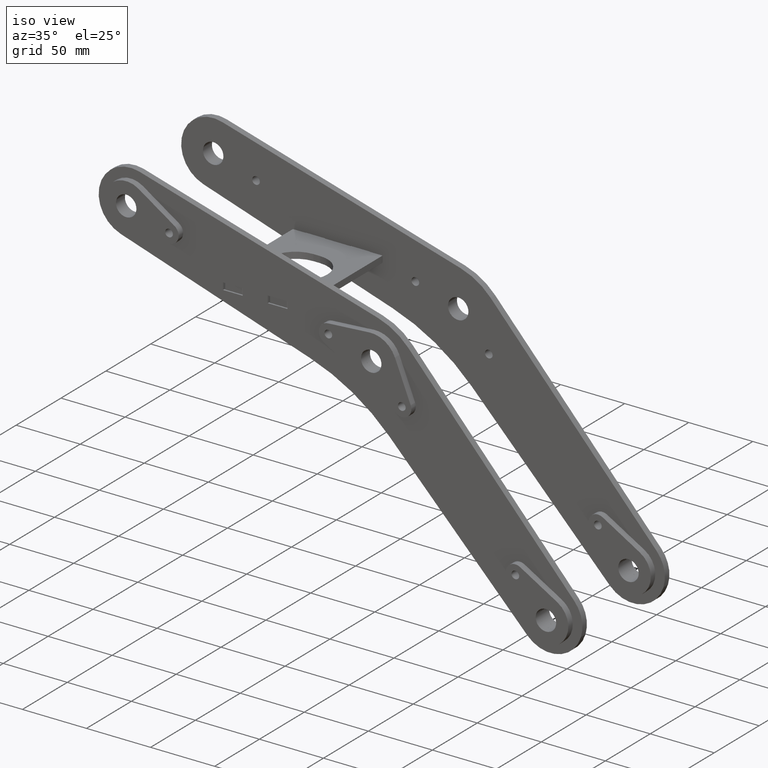
[diagram: clean part render]
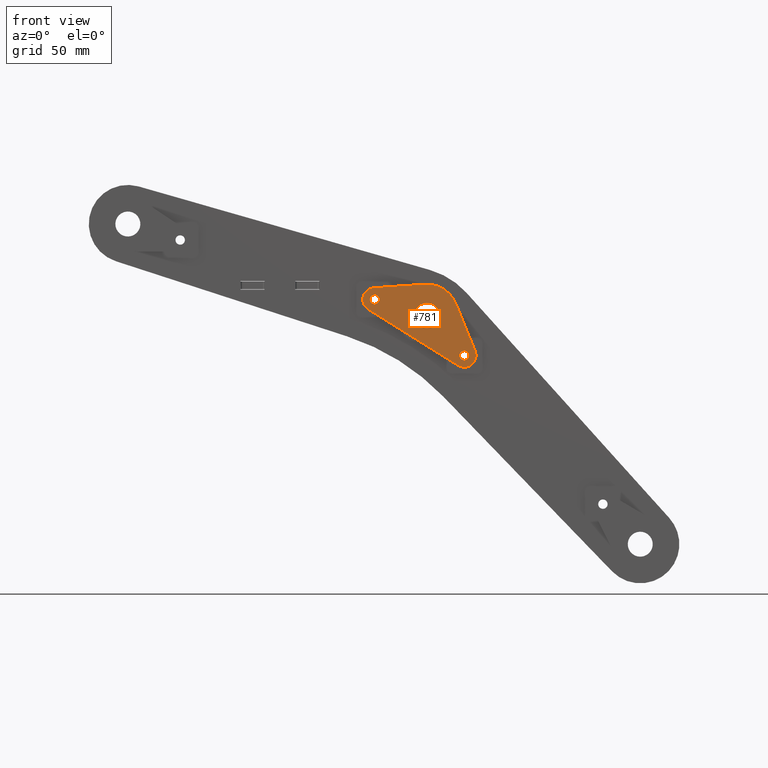
[diagram: tour spotlight — one face highlighted and labeled with its STEP entity id]
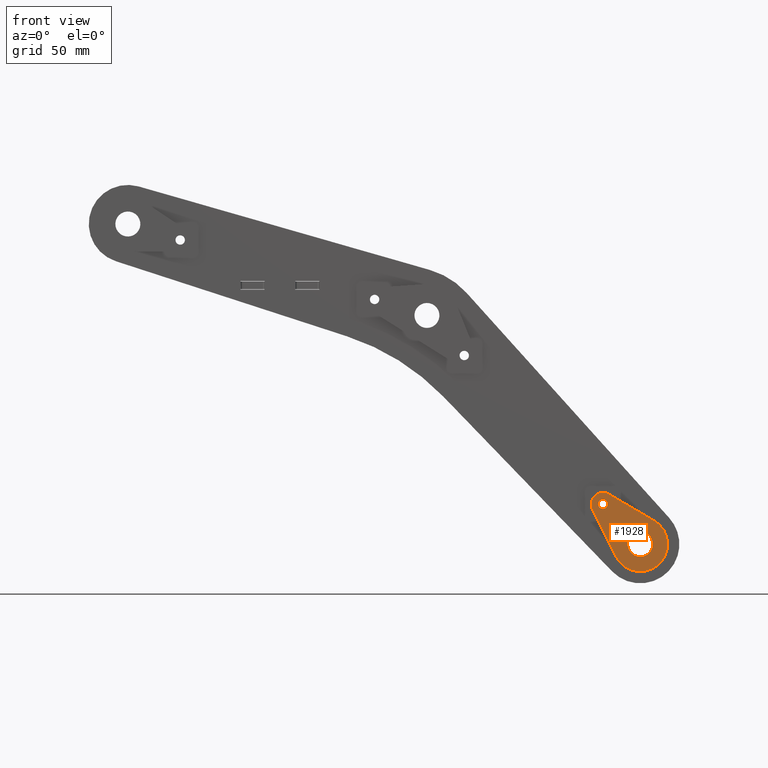
[diagram: tour spotlight — one face highlighted and labeled with its STEP entity id]
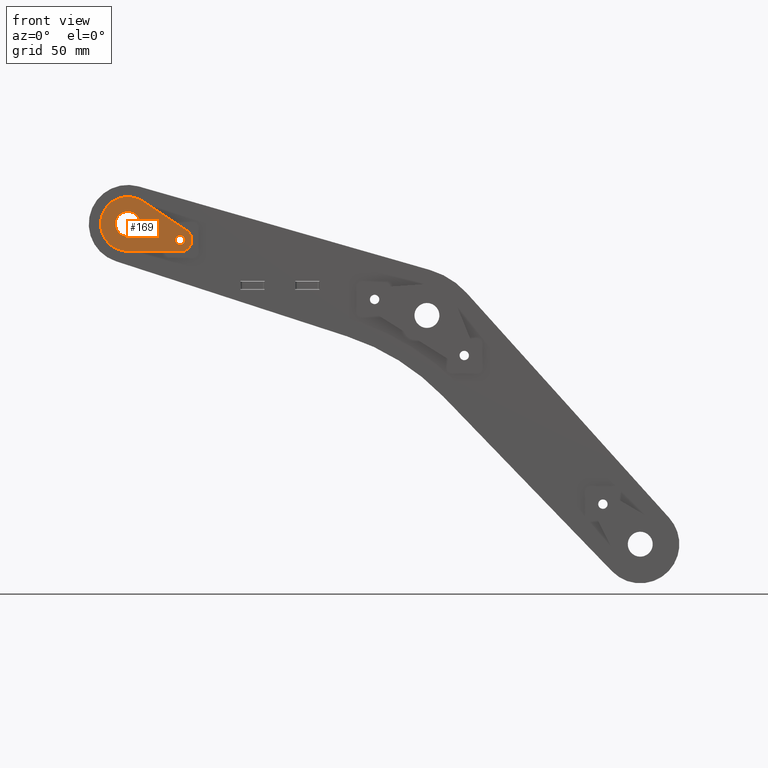
[diagram: tour spotlight — one face highlighted and labeled with its STEP entity id]
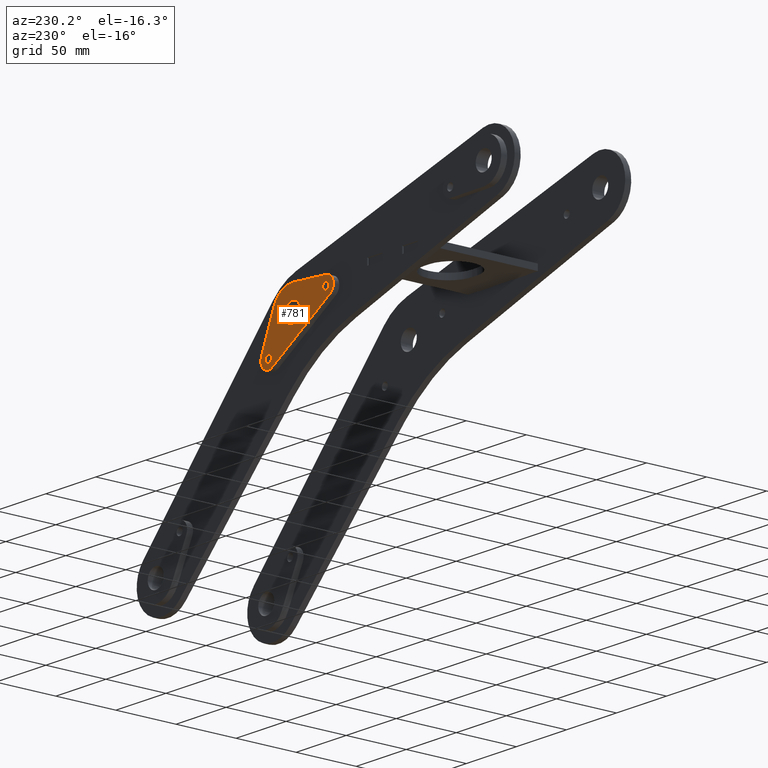
[diagram: tour spotlight — one face highlighted and labeled with its STEP entity id]
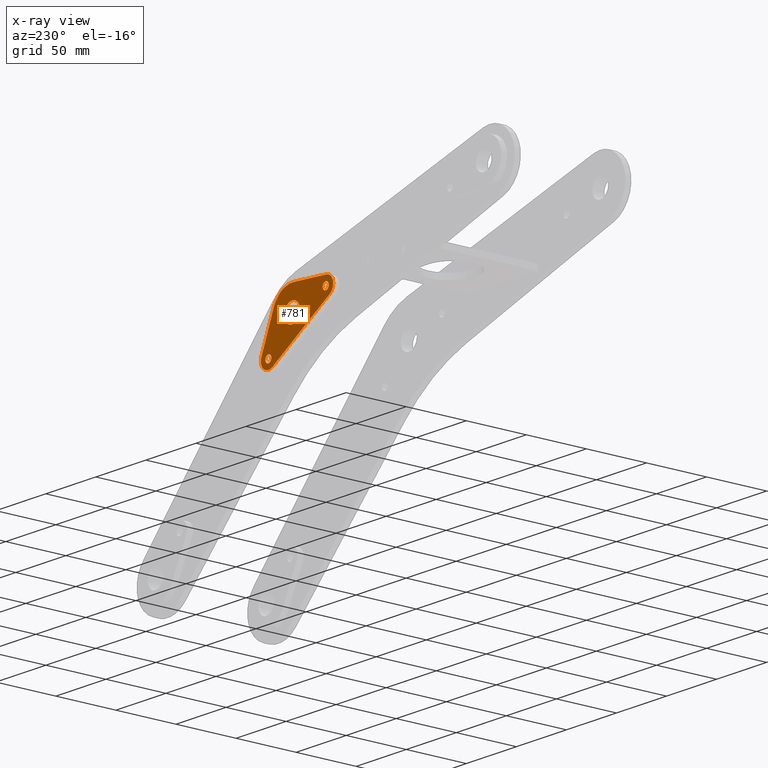
[diagram: x-ray of the same camera — body ghosted, this tour face saturated]
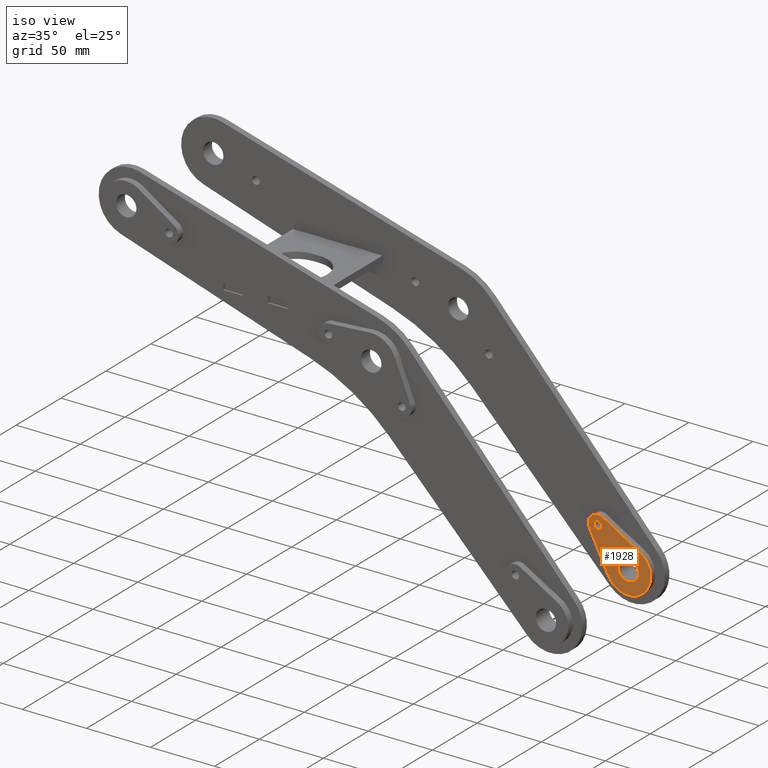
[diagram: tour spotlight — one face highlighted and labeled with its STEP entity id]
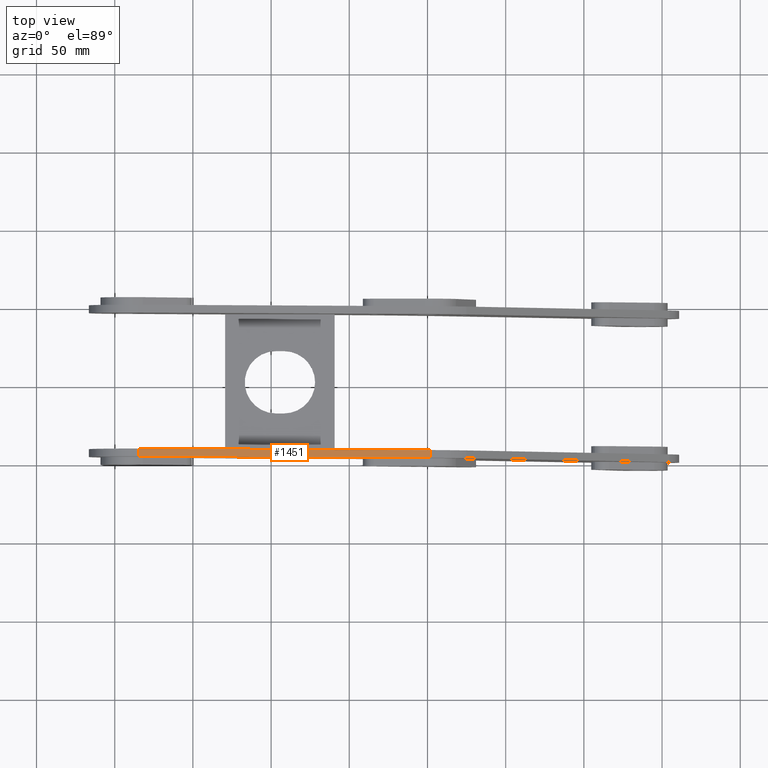
[diagram: tour spotlight — one face highlighted and labeled with its STEP entity id]
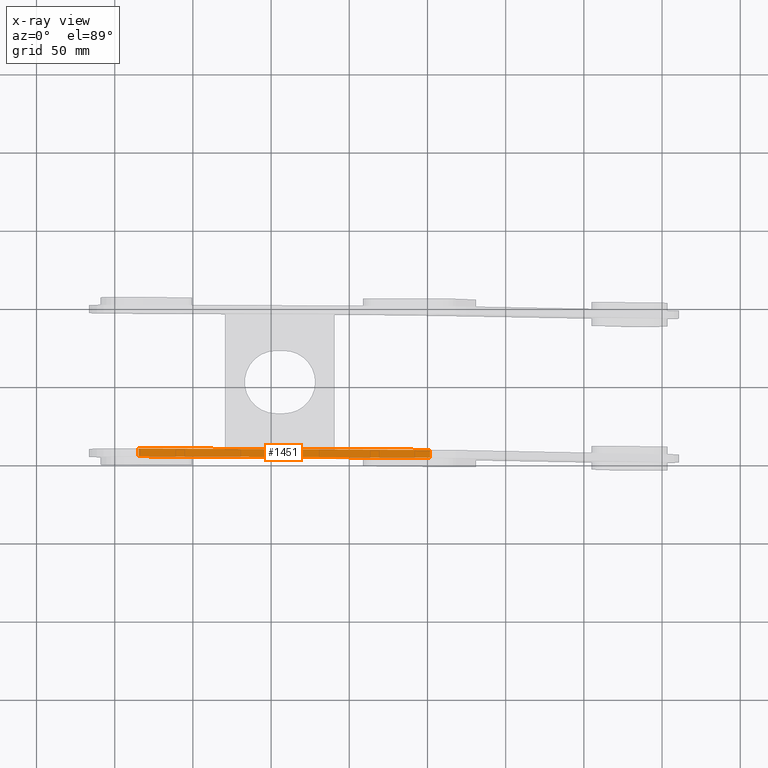
[diagram: x-ray of the same camera — body ghosted, this tour face saturated]
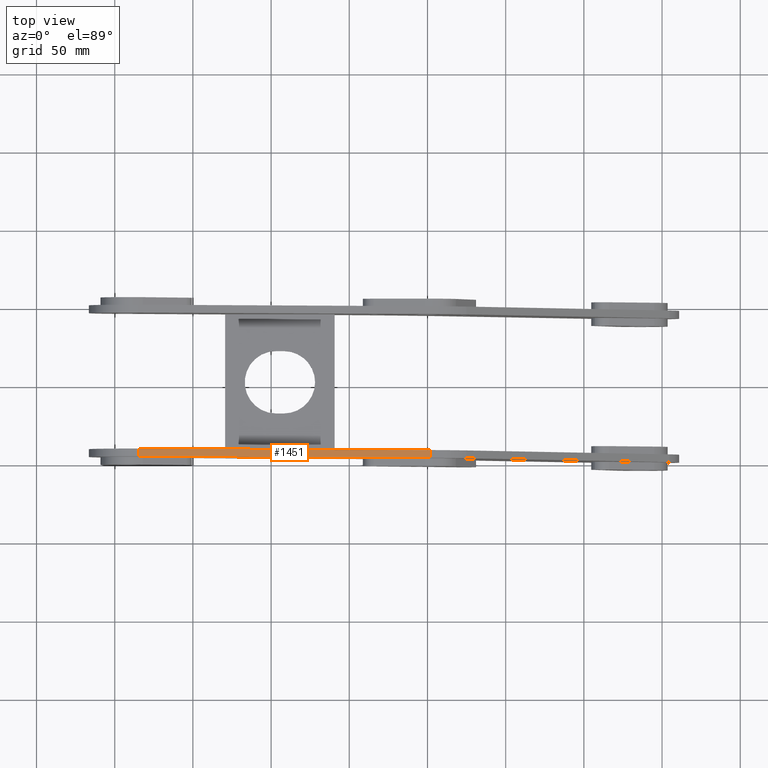
[diagram: tour spotlight — one face highlighted and labeled with its STEP entity id]
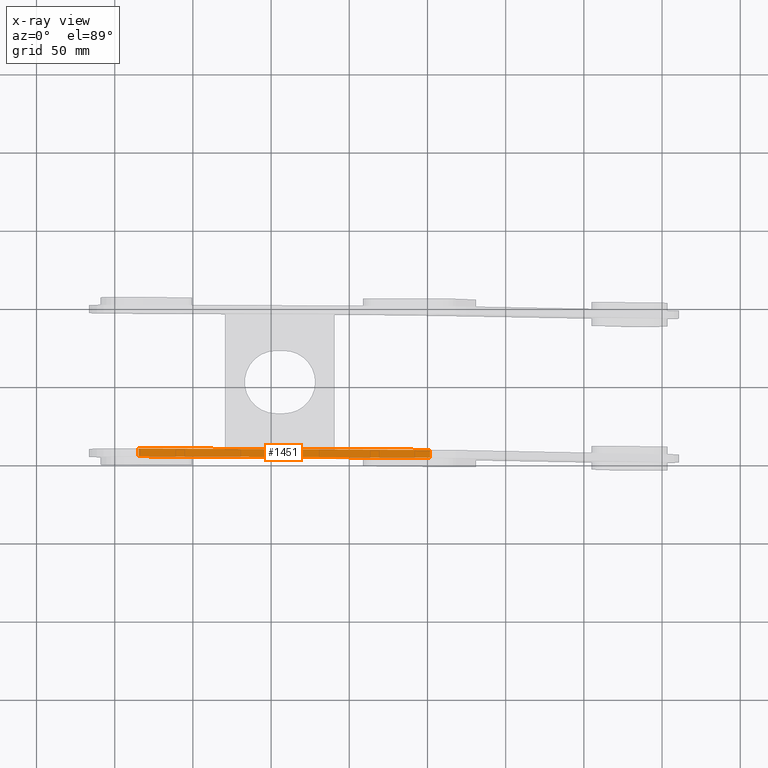
[diagram: x-ray of the same camera — body ghosted, this tour face saturated]
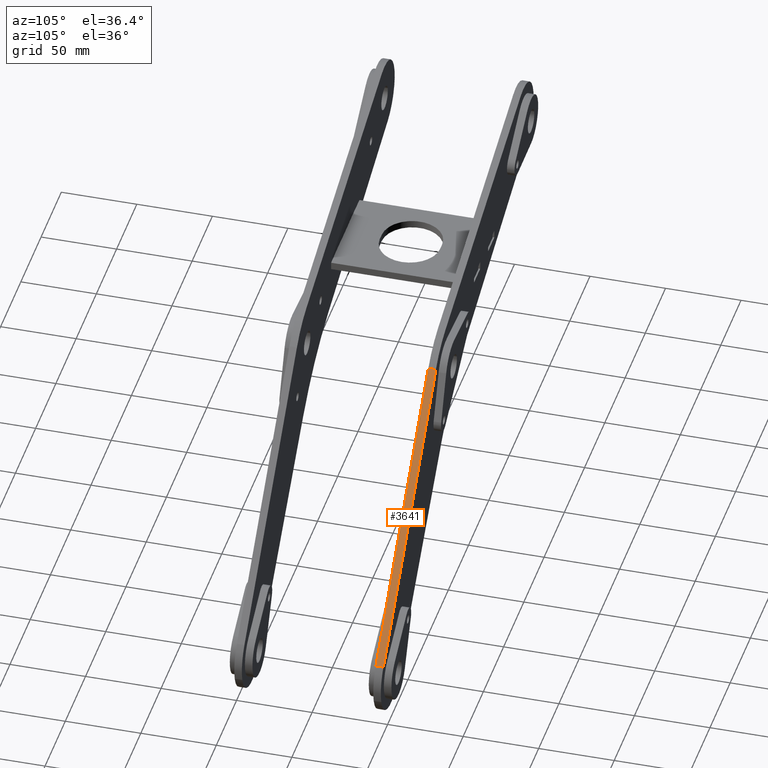
[diagram: tour spotlight — one face highlighted and labeled with its STEP entity id]
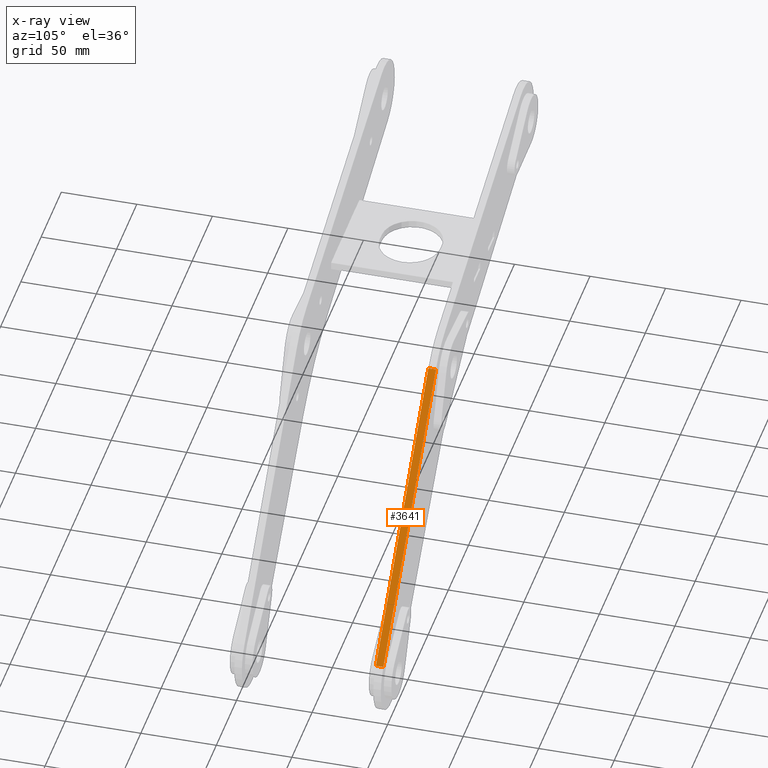
[diagram: x-ray of the same camera — body ghosted, this tour face saturated]
A machine part: a face-by-face anatomy tour. The part has 197 B-rep faces; the first image is the clean iso view, then the 8 largest visible faces are spotlighted one at a time (largest first), each with its STEP entity span.

Face 1 — front view, entity #781. In plain terms, the highlighted planar face has unit normal (-0, -1, -0).
Definition (entity closure, byte-faithful):
#37 = FACE_BOUND ( 'NONE', #1349, .T. ) ;
#46 = CARTESIAN_POINT ( 'NONE',  ( 7.142857142857144126, 18.68099547231717494, 0.000000000000000000 ) ) ;
#70 = VERTEX_POINT ( 'NONE', #809 ) ;
#77 = VERTEX_POINT ( 'NONE', #475 ) ;
#78 = DIRECTION ( 'NONE',  ( 1.000000000000000000, 0.000000000000000000, 0.000000000000000000 ) ) ;
#97 = DIRECTION ( 'NONE',  ( 1.000000000000000000, 0.000000000000000000, 0.000000000000000000 ) ) ;
#106 = EDGE_CURVE ( 'NONE', #3774, #2708, #2247, .T. ) ;
#176 = EDGE_CURVE ( 'NONE', #2708, #3774, #2371, .T. ) ;
#180 = AXIS2_PLACEMENT_3D ( 'NONE', #350, #646, #1875 ) ;
#198 = DIRECTION ( 'NONE',  ( -0.9340497736158586140, 0.3571428571428572618, -0.000000000000000000 ) ) ;
#207 = VERTEX_POINT ( 'NONE', #336 ) ;
#257 = CIRCLE ( 'NONE', #2915, 7.500000000000000000 ) ;
#267 = ORIENTED_EDGE ( 'NONE', *, *, #2638, .F. ) ;
#300 = EDGE_CURVE ( 'NONE', #1073, #3754, #2866, .T. ) ;
#336 = CARTESIAN_POINT ( 'NONE',  ( 37.67857142857142350, 7.005373302118939272, 0.000000000000000000 ) ) ;
#350 = CARTESIAN_POINT ( 'NONE',  ( 0.000000000000000000, 0.000000000000000000, 0.000000000000000000 ) ) ;
#357 = CARTESIAN_POINT ( 'NONE',  ( -33.31088913245535821, -17.50000000000000000, 0.000000000000000000 ) ) ;
#414 = DIRECTION ( 'NONE',  ( 1.000000000000000000, 0.000000000000000000, 0.000000000000000000 ) ) ;
#469 = CARTESIAN_POINT ( 'NONE',  ( 8.000000000000000000, 0.000000000000000000, 0.000000000000000000 ) ) ;
#475 = CARTESIAN_POINT ( 'NONE',  ( -27.31088913245535110, -17.50000000000000000, 0.000000000000000000 ) ) ;
#493 = DIRECTION ( 'NONE',  ( 1.000000000000000000, 0.000000000000000000, 0.000000000000000000 ) ) ;
#503 = DIRECTION ( 'NONE',  ( 0.000000000000000000, 0.000000000000000000, 1.000000000000000000 ) ) ;
#515 = CARTESIAN_POINT ( 'NONE',  ( 0.000000000000000000, 0.000000000000000000, 0.000000000000000000 ) ) ;
#646 = DIRECTION ( 'NONE',  ( 0.000000000000000000, 0.000000000000000000, 1.000000000000000000 ) ) ;
#648 = CARTESIAN_POINT ( 'NONE',  ( 35.00000000000000000, 0.000000000000000000, 0.000000000000000000 ) ) ;
#653 = EDGE_CURVE ( 'NONE', #3754, #1073, #2962, .T. ) ;
#769 = VERTEX_POINT ( 'NONE', #2438 ) ;
#771 = LINE ( 'NONE', #1962, #3723 ) ;
#780 = CARTESIAN_POINT ( 'NONE',  ( -15.52639347747592602, 12.60678807558026904, 0.000000000000000000 ) ) ;
#781 = ADVANCED_FACE ( 'NONE', ( #37, #3605, #3626, #3014 ), #2128, .T. ) ;
#790 = DIRECTION ( 'NONE',  ( 0.000000000000000000, 0.000000000000000000, 1.000000000000000000 ) ) ;
#795 = ORIENTED_EDGE ( 'NONE', *, *, #2728, .T. ) ;
#809 = CARTESIAN_POINT ( 'NONE',  ( 36.94114283826888823, -7.244443697168016172, 0.000000000000000000 ) ) ;
#866 = CIRCLE ( 'NONE', #882, 19.99999999999999645 ) ;
#871 = AXIS2_PLACEMENT_3D ( 'NONE', #2593, #2906, #3466 ) ;
#882 = AXIS2_PLACEMENT_3D ( 'NONE', #1249, #1521, #931 ) ;
#929 = ORIENTED_EDGE ( 'NONE', *, *, #3175, .T. ) ;
#931 = DIRECTION ( 'NONE',  ( 1.000000000000000000, 0.000000000000000000, 0.000000000000000000 ) ) ;
#956 = AXIS2_PLACEMENT_3D ( 'NONE', #3436, #790, #1531 ) ;
#1013 = EDGE_CURVE ( 'NONE', #1795, #2865, #1374, .T. ) ;
#1073 = VERTEX_POINT ( 'NONE', #2015 ) ;
#1076 = AXIS2_PLACEMENT_3D ( 'NONE', #648, #1877, #78 ) ;
#1155 = EDGE_CURVE ( 'NONE', #70, #3542, #3086, .T. ) ;
#1160 = EDGE_LOOP ( 'NONE', ( #3325, #2886, #1443, #929, #2341, #795, #2778 ) ) ;
#1249 = CARTESIAN_POINT ( 'NONE',  ( 0.000000000000000000, 0.000000000000000000, 0.000000000000000000 ) ) ;
#1318 = AXIS2_PLACEMENT_3D ( 'NONE', #515, #2856, #493 ) ;
#1349 = EDGE_LOOP ( 'NONE', ( #2911, #267 ) ) ;
#1352 = DIRECTION ( 'NONE',  ( 0.000000000000000000, 0.000000000000000000, 1.000000000000000000 ) ) ;
#1355 = VECTOR ( 'NONE', #3404, 1000.000000000000114 ) ;
#1368 = CARTESIAN_POINT ( 'NONE',  ( -28.36974629418656946, -24.74444369716783854, 0.000000000000000000 ) ) ;
#1374 = LINE ( 'NONE', #780, #1355 ) ;
#1405 = VERTEX_POINT ( 'NONE', #46 ) ;
#1443 = ORIENTED_EDGE ( 'NONE', *, *, #3738, .T. ) ;
#1491 = CIRCLE ( 'NONE', #2229, 3.000000000000002665 ) ;
#1507 = EDGE_CURVE ( 'NONE', #1405, #1795, #866, .T. ) ;
#1518 = CARTESIAN_POINT ( 'NONE',  ( -30.31088913245535110, -17.50000000000000000, 0.000000000000000000 ) ) ;
#1521 = DIRECTION ( 'NONE',  ( 0.000000000000000000, 0.000000000000000000, 1.000000000000000000 ) ) ;
#1531 = DIRECTION ( 'NONE',  ( 1.000000000000000000, 0.000000000000000000, 0.000000000000000000 ) ) ;
#1584 = EDGE_LOOP ( 'NONE', ( #3220, #3562 ) ) ;
#1663 = AXIS2_PLACEMENT_3D ( 'NONE', #3726, #2149, #3331 ) ;
#1675 = LINE ( 'NONE', #1368, #1859 ) ;
#1680 = DIRECTION ( 'NONE',  ( 1.000000000000000000, 0.000000000000000000, 0.000000000000000000 ) ) ;
#1697 = EDGE_LOOP ( 'NONE', ( #3704, #2086 ) ) ;
#1730 = AXIS2_PLACEMENT_3D ( 'NONE', #1741, #503, #1680 ) ;
#1741 = CARTESIAN_POINT ( 'NONE',  ( 35.00000000000000000, 0.000000000000000000, 0.000000000000000000 ) ) ;
#1795 = VERTEX_POINT ( 'NONE', #2877 ) ;
#1859 = VECTOR ( 'NONE', #1905, 1000.000000000000114 ) ;
#1875 = DIRECTION ( 'NONE',  ( 1.000000000000000000, 0.000000000000000000, -0.000000000000000000 ) ) ;
#1877 = DIRECTION ( 'NONE',  ( 0.000000000000000000, 0.000000000000000000, 1.000000000000000000 ) ) ;
#1884 = CARTESIAN_POINT ( 'NONE',  ( 38.00000000000000711, 0.000000000000000000, 0.000000000000000000 ) ) ;
#1900 = CARTESIAN_POINT ( 'NONE',  ( -8.000000000000000000, 9.797174393178825657E-16, 0.000000000000000000 ) ) ;
#1905 = DIRECTION ( 'NONE',  ( 0.9659258262890690894, 0.2588190451025179639, 0.000000000000000000 ) ) ;
#1962 = CARTESIAN_POINT ( 'NONE',  ( 7.142857142857144126, 18.68099547231717494, 0.000000000000000000 ) ) ;
#1981 = AXIS2_PLACEMENT_3D ( 'NONE', #3667, #1352, #97 ) ;
#2015 = CARTESIAN_POINT ( 'NONE',  ( 32.00000000000000000, 3.673940397442059868E-16, 0.000000000000000000 ) ) ;
#2086 = ORIENTED_EDGE ( 'NONE', *, *, #106, .F. ) ;
#2128 = PLANE ( 'NONE',  #180 ) ;
#2149 = DIRECTION ( 'NONE',  ( 0.000000000000000000, 0.000000000000000000, 1.000000000000000000 ) ) ;
#2229 = AXIS2_PLACEMENT_3D ( 'NONE', #1518, #2701, #2408 ) ;
#2247 = CIRCLE ( 'NONE', #1318, 8.000000000000000000 ) ;
#2341 = ORIENTED_EDGE ( 'NONE', *, *, #1155, .T. ) ;
#2371 = CIRCLE ( 'NONE', #956, 8.000000000000000000 ) ;
#2408 = DIRECTION ( 'NONE',  ( 1.000000000000000000, 0.000000000000000000, 0.000000000000000000 ) ) ;
#2428 = CARTESIAN_POINT ( 'NONE',  ( 42.50000000000000000, 0.000000000000000000, 0.000000000000000000 ) ) ;
#2438 = CARTESIAN_POINT ( 'NONE',  ( -28.36974629418656946, -24.74444369716783854, 0.000000000000000000 ) ) ;
#2522 = DIRECTION ( 'NONE',  ( 0.000000000000000000, 0.000000000000000000, 1.000000000000000000 ) ) ;
#2560 = CARTESIAN_POINT ( 'NONE',  ( -30.31088913245545413, -17.49999999999982236, 0.000000000000000000 ) ) ;
#2576 = CARTESIAN_POINT ( 'NONE',  ( -36.13328668650892439, -12.77245447165721970, 0.000000000000000000 ) ) ;
#2593 = CARTESIAN_POINT ( 'NONE',  ( 35.00000000000000000, 0.000000000000000000, 0.000000000000000000 ) ) ;
#2638 = EDGE_CURVE ( 'NONE', #3406, #77, #3651, .T. ) ;
#2701 = DIRECTION ( 'NONE',  ( 0.000000000000000000, 0.000000000000000000, 1.000000000000000000 ) ) ;
#2708 = VERTEX_POINT ( 'NONE', #469 ) ;
#2728 = EDGE_CURVE ( 'NONE', #3542, #207, #2907, .T. ) ;
#2778 = ORIENTED_EDGE ( 'NONE', *, *, #3711, .T. ) ;
#2856 = DIRECTION ( 'NONE',  ( 0.000000000000000000, 0.000000000000000000, 1.000000000000000000 ) ) ;
#2865 = VERTEX_POINT ( 'NONE', #2576 ) ;
#2866 = CIRCLE ( 'NONE', #1076, 3.000000000000002665 ) ;
#2877 = CARTESIAN_POINT ( 'NONE',  ( -15.52639347747592602, 12.60678807558026904, 0.000000000000000000 ) ) ;
#2886 = ORIENTED_EDGE ( 'NONE', *, *, #1013, .T. ) ;
#2906 = DIRECTION ( 'NONE',  ( 0.000000000000000000, 0.000000000000000000, 1.000000000000000000 ) ) ;
#2907 = CIRCLE ( 'NONE', #1663, 7.500000000000000000 ) ;
#2911 = ORIENTED_EDGE ( 'NONE', *, *, #3595, .F. ) ;
#2915 = AXIS2_PLACEMENT_3D ( 'NONE', #2560, #2522, #414 ) ;
#2962 = CIRCLE ( 'NONE', #871, 3.000000000000002665 ) ;
#3014 = FACE_OUTER_BOUND ( 'NONE', #1160, .T. ) ;
#3086 = CIRCLE ( 'NONE', #1730, 7.500000000000000000 ) ;
#3175 = EDGE_CURVE ( 'NONE', #769, #70, #1675, .T. ) ;
#3220 = ORIENTED_EDGE ( 'NONE', *, *, #653, .F. ) ;
#3325 = ORIENTED_EDGE ( 'NONE', *, *, #1507, .T. ) ;
#3331 = DIRECTION ( 'NONE',  ( 1.000000000000000000, 0.000000000000000000, 0.000000000000000000 ) ) ;
#3404 = DIRECTION ( 'NONE',  ( -0.6303394037790134297, -0.7763196738737964120, 0.000000000000000000 ) ) ;
#3406 = VERTEX_POINT ( 'NONE', #357 ) ;
#3436 = CARTESIAN_POINT ( 'NONE',  ( 0.000000000000000000, 0.000000000000000000, 0.000000000000000000 ) ) ;
#3466 = DIRECTION ( 'NONE',  ( 1.000000000000000000, 0.000000000000000000, 0.000000000000000000 ) ) ;
#3542 = VERTEX_POINT ( 'NONE', #2428 ) ;
#3562 = ORIENTED_EDGE ( 'NONE', *, *, #300, .F. ) ;
#3595 = EDGE_CURVE ( 'NONE', #77, #3406, #1491, .T. ) ;
#3605 = FACE_BOUND ( 'NONE', #1584, .T. ) ;
#3626 = FACE_BOUND ( 'NONE', #1697, .T. ) ;
#3651 = CIRCLE ( 'NONE', #1981, 3.000000000000002665 ) ;
#3667 = CARTESIAN_POINT ( 'NONE',  ( -30.31088913245535110, -17.50000000000000000, 0.000000000000000000 ) ) ;
#3704 = ORIENTED_EDGE ( 'NONE', *, *, #176, .F. ) ;
#3711 = EDGE_CURVE ( 'NONE', #207, #1405, #771, .T. ) ;
#3723 = VECTOR ( 'NONE', #198, 1000.000000000000000 ) ;
#3726 = CARTESIAN_POINT ( 'NONE',  ( 35.00000000000000000, 0.000000000000000000, 0.000000000000000000 ) ) ;
#3738 = EDGE_CURVE ( 'NONE', #2865, #769, #257, .T. ) ;
#3754 = VERTEX_POINT ( 'NONE', #1884 ) ;
#3774 = VERTEX_POINT ( 'NONE', #1900 ) ;

Face 2 — front view, entity #1928. In plain terms, the highlighted planar face has unit normal (0, 1, 0).
Definition (entity closure, byte-faithful):
#2 = EDGE_LOOP ( 'NONE', ( #2822, #2088 ) ) ;
#4 = DIRECTION ( 'NONE',  ( 3.451266460341922270E-31, 2.588449845256441483E-31, 1.000000000000000000 ) ) ;
#63 = VECTOR ( 'NONE', #2756, 1000.000000000000114 ) ;
#64 = CARTESIAN_POINT ( 'NONE',  ( 35.00000000000007105, -4.857225732735059864E-14, -4.999999999999976907 ) ) ;
#211 = DIRECTION ( 'NONE',  ( 1.000000000000000000, -8.881784197001219783E-16, 0.000000000000000000 ) ) ;
#243 = AXIS2_PLACEMENT_3D ( 'NONE', #900, #3250, #1109 ) ;
#258 = EDGE_LOOP ( 'NONE', ( #1189, #2678 ) ) ;
#427 = AXIS2_PLACEMENT_3D ( 'NONE', #64, #3293, #2427 ) ;
#472 = CARTESIAN_POINT ( 'NONE',  ( -8.000000000000000000, 4.615697844965246767E-15, -4.999999999999997335 ) ) ;
#479 = EDGE_CURVE ( 'NONE', #1331, #1372, #1481, .T. ) ;
#556 = CARTESIAN_POINT ( 'NONE',  ( 5.000000000000101252, 16.77050983124843953, -5.000000000000004441 ) ) ;
#560 = CIRCLE ( 'NONE', #243, 3.000000000000016431 ) ;
#567 = DIRECTION ( 'NONE',  ( 1.000000000000000000, -8.881784197001216825E-16, 0.000000000000000000 ) ) ;
#581 = LINE ( 'NONE', #556, #3389 ) ;
#595 = EDGE_CURVE ( 'NONE', #744, #1331, #932, .T. ) ;
#607 = DIRECTION ( 'NONE',  ( 3.451266460341922270E-31, 2.588449845256441483E-31, 1.000000000000000000 ) ) ;
#638 = EDGE_CURVE ( 'NONE', #3299, #3471, #560, .T. ) ;
#744 = VERTEX_POINT ( 'NONE', #2998 ) ;
#854 = EDGE_CURVE ( 'NONE', #884, #2187, #3273, .T. ) ;
#884 = VERTEX_POINT ( 'NONE', #1510 ) ;
#900 = CARTESIAN_POINT ( 'NONE',  ( 35.00000000000007105, -4.857225732735059864E-14, -4.999999999999976907 ) ) ;
#932 = CIRCLE ( 'NONE', #1417, 7.500000000000027534 ) ;
#990 = CARTESIAN_POINT ( 'NONE',  ( 0.000000000000000000, -3.469446951953614189E-15, -4.999999999999997335 ) ) ;
#1109 = DIRECTION ( 'NONE',  ( 1.000000000000000000, -8.881784197001211894E-16, 0.000000000000000000 ) ) ;
#1158 = VERTEX_POINT ( 'NONE', #2053 ) ;
#1161 = CARTESIAN_POINT ( 'NONE',  ( 42.50000000000007105, -5.523359547510151264E-14, -4.999999999999976907 ) ) ;
#1189 = ORIENTED_EDGE ( 'NONE', *, *, #854, .T. ) ;
#1210 = FACE_BOUND ( 'NONE', #2, .T. ) ;
#1232 = EDGE_CURVE ( 'NONE', #2187, #884, #1913, .T. ) ;
#1258 = CARTESIAN_POINT ( 'NONE',  ( 0.000000000000000000, -3.469446951953614189E-15, -4.999999999999997335 ) ) ;
#1261 = FACE_BOUND ( 'NONE', #258, .T. ) ;
#1314 = ORIENTED_EDGE ( 'NONE', *, *, #479, .F. ) ;
#1331 = VERTEX_POINT ( 'NONE', #1161 ) ;
#1372 = VERTEX_POINT ( 'NONE', #1698 ) ;
#1417 = AXIS2_PLACEMENT_3D ( 'NONE', #3550, #607, #2303 ) ;
#1431 = CARTESIAN_POINT ( 'NONE',  ( 0.000000000000000000, -3.469446951953614189E-15, -4.999999999999997335 ) ) ;
#1481 = CIRCLE ( 'NONE', #3390, 7.500000000000027534 ) ;
#1500 = DIRECTION ( 'NONE',  ( -3.081487911019562914E-31, 2.588449845256447176E-31, 1.000000000000000000 ) ) ;
#1510 = CARTESIAN_POINT ( 'NONE',  ( 8.000000000000031974, -1.057487430955461605E-14, -4.999999999999997335 ) ) ;
#1617 = ORIENTED_EDGE ( 'NONE', *, *, #595, .F. ) ;
#1698 = CARTESIAN_POINT ( 'NONE',  ( 37.14285714285729512, 7.187361356249234667, -4.999999999999928058 ) ) ;
#1725 = CIRCLE ( 'NONE', #427, 3.000000000000016431 ) ;
#1733 = DIRECTION ( 'NONE',  ( -0.9583148474999098054, 0.2857142857142860315, -3.389636702121520213E-31 ) ) ;
#1815 = EDGE_CURVE ( 'NONE', #1372, #1158, #581, .T. ) ;
#1827 = DIRECTION ( 'NONE',  ( 1.000000000000000000, -8.881784197001216825E-16, 3.081487911019565104E-31 ) ) ;
#1866 = PLANE ( 'NONE',  #3770 ) ;
#1867 = LINE ( 'NONE', #3043, #63 ) ;
#1894 = DIRECTION ( 'NONE',  ( 3.451266460341922270E-31, 2.588449845256441483E-31, 1.000000000000000000 ) ) ;
#1913 = CIRCLE ( 'NONE', #2410, 8.000000000000031974 ) ;
#1928 = ADVANCED_FACE ( 'NONE', ( #1210, #1261, #2446 ), #1866, .F. ) ;
#1957 = EDGE_CURVE ( 'NONE', #3471, #3299, #1725, .T. ) ;
#2032 = DIRECTION ( 'NONE',  ( 3.451266460341922270E-31, 2.588449845256441483E-31, 1.000000000000000000 ) ) ;
#2053 = CARTESIAN_POINT ( 'NONE',  ( 5.000000000000101252, 16.77050983124843953, -5.000000000000004441 ) ) ;
#2088 = ORIENTED_EDGE ( 'NONE', *, *, #1957, .T. ) ;
#2151 = CARTESIAN_POINT ( 'NONE',  ( 32.00000000000007105, -4.554032802850603012E-14, -4.999999999999976907 ) ) ;
#2163 = DIRECTION ( 'NONE',  ( 3.451266460341922270E-31, 2.588449845256441483E-31, 1.000000000000000000 ) ) ;
#2187 = VERTEX_POINT ( 'NONE', #472 ) ;
#2303 = DIRECTION ( 'NONE',  ( 1.000000000000000000, -8.881784197001219783E-16, 0.000000000000000000 ) ) ;
#2410 = AXIS2_PLACEMENT_3D ( 'NONE', #1431, #2032, #567 ) ;
#2421 = EDGE_CURVE ( 'NONE', #1158, #2796, #3150, .T. ) ;
#2427 = DIRECTION ( 'NONE',  ( 1.000000000000000000, -8.881784197001211894E-16, 0.000000000000000000 ) ) ;
#2446 = FACE_OUTER_BOUND ( 'NONE', #3119, .T. ) ;
#2466 = AXIS2_PLACEMENT_3D ( 'NONE', #990, #2163, #3345 ) ;
#2470 = AXIS2_PLACEMENT_3D ( 'NONE', #1258, #4, #3314 ) ;
#2583 = CARTESIAN_POINT ( 'NONE',  ( 38.00000000000009237, -5.123679258645097434E-14, -4.999999999999976907 ) ) ;
#2678 = ORIENTED_EDGE ( 'NONE', *, *, #1232, .T. ) ;
#2704 = ORIENTED_EDGE ( 'NONE', *, *, #3510, .F. ) ;
#2742 = ORIENTED_EDGE ( 'NONE', *, *, #2421, .F. ) ;
#2756 = DIRECTION ( 'NONE',  ( 0.9583148474999101385, 0.2857142857142847547, 3.748822636749744078E-31 ) ) ;
#2796 = VERTEX_POINT ( 'NONE', #2888 ) ;
#2822 = ORIENTED_EDGE ( 'NONE', *, *, #638, .T. ) ;
#2888 = CARTESIAN_POINT ( 'NONE',  ( 5.000000000000129674, -16.77050983124860650, -4.999999999999962697 ) ) ;
#2998 = CARTESIAN_POINT ( 'NONE',  ( 37.14285714285735196, -7.187361356249418520, -4.999999999999976907 ) ) ;
#3043 = CARTESIAN_POINT ( 'NONE',  ( 5.000000000000129674, -16.77050983124860650, -4.999999999999962697 ) ) ;
#3119 = EDGE_LOOP ( 'NONE', ( #2742, #3486, #1314, #1617, #2704 ) ) ;
#3150 = CIRCLE ( 'NONE', #2470, 17.50000000000007105 ) ;
#3250 = DIRECTION ( 'NONE',  ( 3.451266460341922270E-31, 2.588449845256441483E-31, 1.000000000000000000 ) ) ;
#3273 = CIRCLE ( 'NONE', #2466, 8.000000000000031974 ) ;
#3293 = DIRECTION ( 'NONE',  ( 3.451266460341922270E-31, 2.588449845256441483E-31, 1.000000000000000000 ) ) ;
#3299 = VERTEX_POINT ( 'NONE', #2583 ) ;
#3314 = DIRECTION ( 'NONE',  ( 1.000000000000000000, -8.881784197001215839E-16, 0.000000000000000000 ) ) ;
#3345 = DIRECTION ( 'NONE',  ( 1.000000000000000000, -8.881784197001216825E-16, 0.000000000000000000 ) ) ;
#3389 = VECTOR ( 'NONE', #1733, 1000.000000000000114 ) ;
#3390 = AXIS2_PLACEMENT_3D ( 'NONE', #3701, #1894, #211 ) ;
#3471 = VERTEX_POINT ( 'NONE', #2151 ) ;
#3486 = ORIENTED_EDGE ( 'NONE', *, *, #1815, .F. ) ;
#3510 = EDGE_CURVE ( 'NONE', #2796, #744, #1867, .T. ) ;
#3550 = CARTESIAN_POINT ( 'NONE',  ( 35.00000000000007105, -4.857225732735059864E-14, -4.999999999999976907 ) ) ;
#3574 = CARTESIAN_POINT ( 'NONE',  ( 0.000000000000000000, -3.469446951953614189E-15, -4.999999999999997335 ) ) ;
#3701 = CARTESIAN_POINT ( 'NONE',  ( 35.00000000000007105, -4.857225732735059864E-14, -4.999999999999976907 ) ) ;
#3770 = AXIS2_PLACEMENT_3D ( 'NONE', #3574, #1500, #1827 ) ;

Face 3 — front view, entity #169. In plain terms, the highlighted planar face has unit normal (-0, -1, -0).
Definition (entity closure, byte-faithful):
#13 = CARTESIAN_POINT ( 'NONE',  ( 5.000000000000004441, -16.77050983124852124, 3.469446951953614189E-14 ) ) ;
#21 = AXIS2_PLACEMENT_3D ( 'NONE', #2679, #1366, #23 ) ;
#23 = DIRECTION ( 'NONE',  ( 1.000000000000000000, -8.881784197001216825E-16, 3.081487911019565104E-31 ) ) ;
#169 = ADVANCED_FACE ( 'NONE', ( #2963, #1965, #1650 ), #2832, .T. ) ;
#252 = VERTEX_POINT ( 'NONE', #2113 ) ;
#289 = ORIENTED_EDGE ( 'NONE', *, *, #3270, .T. ) ;
#320 = CIRCLE ( 'NONE', #2048, 3.000000000000016431 ) ;
#387 = DIRECTION ( 'NONE',  ( 0.9583148474999101385, 0.2857142857142847547, 3.748822636749744078E-31 ) ) ;
#404 = ORIENTED_EDGE ( 'NONE', *, *, #639, .F. ) ;
#490 = EDGE_CURVE ( 'NONE', #994, #1198, #2589, .T. ) ;
#566 = CARTESIAN_POINT ( 'NONE',  ( 42.50000000000007105, -5.523359547510150002E-14, 2.775557561562884725E-14 ) ) ;
#625 = CIRCLE ( 'NONE', #3457, 17.50000000000007105 ) ;
#639 = EDGE_CURVE ( 'NONE', #252, #1737, #686, .T. ) ;
#663 = EDGE_CURVE ( 'NONE', #2199, #1288, #1052, .T. ) ;
#686 = CIRCLE ( 'NONE', #1353, 3.000000000000016431 ) ;
#764 = EDGE_LOOP ( 'NONE', ( #3554, #3642 ) ) ;
#848 = EDGE_CURVE ( 'NONE', #1375, #2199, #1799, .T. ) ;
#889 = DIRECTION ( 'NONE',  ( 1.000000000000000000, -8.881784197001215839E-16, 3.081487911019565104E-31 ) ) ;
#890 = CARTESIAN_POINT ( 'NONE',  ( 32.00000000000007105, -4.554032802850601750E-14, 2.775557561562891351E-14 ) ) ;
#894 = ORIENTED_EDGE ( 'NONE', *, *, #848, .T. ) ;
#940 = EDGE_CURVE ( 'NONE', #1198, #994, #3587, .T. ) ;
#994 = VERTEX_POINT ( 'NONE', #3073 ) ;
#1024 = EDGE_LOOP ( 'NONE', ( #1268, #894, #2061, #3585, #289 ) ) ;
#1052 = CIRCLE ( 'NONE', #2406, 7.500000000000027534 ) ;
#1054 = CIRCLE ( 'NONE', #2842, 7.500000000000027534 ) ;
#1067 = EDGE_LOOP ( 'NONE', ( #404, #3564 ) ) ;
#1092 = CARTESIAN_POINT ( 'NONE',  ( 0.000000000000000000, 0.000000000000000000, 0.000000000000000000 ) ) ;
#1095 = CARTESIAN_POINT ( 'NONE',  ( 0.000000000000000000, 0.000000000000000000, 0.000000000000000000 ) ) ;
#1135 = EDGE_CURVE ( 'NONE', #1288, #1758, #1054, .T. ) ;
#1143 = CARTESIAN_POINT ( 'NONE',  ( -8.000000000000000000, 4.615697844965258600E-15, 2.761013168273537115E-30 ) ) ;
#1157 = LINE ( 'NONE', #3788, #2668 ) ;
#1198 = VERTEX_POINT ( 'NONE', #1143 ) ;
#1268 = ORIENTED_EDGE ( 'NONE', *, *, #2323, .T. ) ;
#1288 = VERTEX_POINT ( 'NONE', #566 ) ;
#1350 = DIRECTION ( 'NONE',  ( 3.451266460341922270E-31, 2.588449845256441483E-31, 1.000000000000000000 ) ) ;
#1353 = AXIS2_PLACEMENT_3D ( 'NONE', #2280, #1721, #2019 ) ;
#1366 = DIRECTION ( 'NONE',  ( -3.081487911019562914E-31, 2.588449845256447176E-31, 1.000000000000000000 ) ) ;
#1375 = VERTEX_POINT ( 'NONE', #13 ) ;
#1433 = DIRECTION ( 'NONE',  ( 3.451266460341922270E-31, 2.588449845256441483E-31, 1.000000000000000000 ) ) ;
#1601 = DIRECTION ( 'NONE',  ( 3.451266460341922270E-31, 2.588449845256441483E-31, 1.000000000000000000 ) ) ;
#1611 = CARTESIAN_POINT ( 'NONE',  ( 5.000000000000101252, 16.77050983124844308, 2.081668171172168513E-14 ) ) ;
#1650 = FACE_OUTER_BOUND ( 'NONE', #1024, .T. ) ;
#1721 = DIRECTION ( 'NONE',  ( 3.451266460341922270E-31, 2.588449845256441483E-31, 1.000000000000000000 ) ) ;
#1737 = VERTEX_POINT ( 'NONE', #890 ) ;
#1748 = DIRECTION ( 'NONE',  ( 3.451266460341922270E-31, 2.588449845256441483E-31, 1.000000000000000000 ) ) ;
#1758 = VERTEX_POINT ( 'NONE', #3453 ) ;
#1799 = LINE ( 'NONE', #1858, #3146 ) ;
#1858 = CARTESIAN_POINT ( 'NONE',  ( 5.000000000000004441, -16.77050983124852124, 3.469446951953614189E-14 ) ) ;
#1892 = CARTESIAN_POINT ( 'NONE',  ( 0.000000000000000000, 0.000000000000000000, 0.000000000000000000 ) ) ;
#1965 = FACE_BOUND ( 'NONE', #764, .T. ) ;
#2019 = DIRECTION ( 'NONE',  ( 1.000000000000000000, -8.881784197001211894E-16, 0.000000000000000000 ) ) ;
#2048 = AXIS2_PLACEMENT_3D ( 'NONE', #2503, #3690, #3708 ) ;
#2061 = ORIENTED_EDGE ( 'NONE', *, *, #663, .T. ) ;
#2113 = CARTESIAN_POINT ( 'NONE',  ( 38.00000000000009237, -4.776734563449736015E-14, 2.775557561562891351E-14 ) ) ;
#2199 = VERTEX_POINT ( 'NONE', #2205 ) ;
#2205 = CARTESIAN_POINT ( 'NONE',  ( 37.14285714285735196, -7.187361356249414968, 2.775557561562891351E-14 ) ) ;
#2276 = DIRECTION ( 'NONE',  ( 3.451266460341922270E-31, 2.588449845256441483E-31, 1.000000000000000000 ) ) ;
#2280 = CARTESIAN_POINT ( 'NONE',  ( 35.00000000000007105, -4.510281037539698445E-14, 2.775557561562891351E-14 ) ) ;
#2312 = DIRECTION ( 'NONE',  ( -0.9583148474999098054, 0.2857142857142860315, -3.389636702121520213E-31 ) ) ;
#2323 = EDGE_CURVE ( 'NONE', #3695, #1375, #625, .T. ) ;
#2406 = AXIS2_PLACEMENT_3D ( 'NONE', #3781, #1433, #2613 ) ;
#2503 = CARTESIAN_POINT ( 'NONE',  ( 35.00000000000007105, -4.510281037539698445E-14, 2.775557561562891351E-14 ) ) ;
#2538 = DIRECTION ( 'NONE',  ( 1.000000000000000000, -8.881784197001216825E-16, 3.081487911019565104E-31 ) ) ;
#2589 = CIRCLE ( 'NONE', #2776, 8.000000000000031974 ) ;
#2613 = DIRECTION ( 'NONE',  ( 1.000000000000000000, -8.881784197001219783E-16, 0.000000000000000000 ) ) ;
#2668 = VECTOR ( 'NONE', #2312, 1000.000000000000114 ) ;
#2679 = CARTESIAN_POINT ( 'NONE',  ( 0.000000000000000000, 0.000000000000000000, 0.000000000000000000 ) ) ;
#2765 = DIRECTION ( 'NONE',  ( 1.000000000000000000, -8.881784197001216825E-16, 3.081487911019565104E-31 ) ) ;
#2776 = AXIS2_PLACEMENT_3D ( 'NONE', #1092, #1350, #2538 ) ;
#2832 = PLANE ( 'NONE',  #21 ) ;
#2842 = AXIS2_PLACEMENT_3D ( 'NONE', #2884, #2276, #2900 ) ;
#2884 = CARTESIAN_POINT ( 'NONE',  ( 35.00000000000007105, -4.510281037539698445E-14, 2.775557561562891351E-14 ) ) ;
#2900 = DIRECTION ( 'NONE',  ( 1.000000000000000000, -8.881784197001219783E-16, 0.000000000000000000 ) ) ;
#2963 = FACE_BOUND ( 'NONE', #1067, .T. ) ;
#3073 = CARTESIAN_POINT ( 'NONE',  ( 8.000000000000031974, -7.105427357601001859E-15, 2.465190328815661892E-30 ) ) ;
#3146 = VECTOR ( 'NONE', #387, 1000.000000000000114 ) ;
#3270 = EDGE_CURVE ( 'NONE', #1758, #3695, #1157, .T. ) ;
#3453 = CARTESIAN_POINT ( 'NONE',  ( 37.14285714285729512, 7.187361356249231115, 7.632783294297951215E-14 ) ) ;
#3457 = AXIS2_PLACEMENT_3D ( 'NONE', #1095, #1748, #889 ) ;
#3554 = ORIENTED_EDGE ( 'NONE', *, *, #490, .F. ) ;
#3564 = ORIENTED_EDGE ( 'NONE', *, *, #3615, .F. ) ;
#3585 = ORIENTED_EDGE ( 'NONE', *, *, #1135, .T. ) ;
#3587 = CIRCLE ( 'NONE', #3715, 8.000000000000031974 ) ;
#3615 = EDGE_CURVE ( 'NONE', #1737, #252, #320, .T. ) ;
#3642 = ORIENTED_EDGE ( 'NONE', *, *, #940, .F. ) ;
#3690 = DIRECTION ( 'NONE',  ( 3.451266460341922270E-31, 2.588449845256441483E-31, 1.000000000000000000 ) ) ;
#3695 = VERTEX_POINT ( 'NONE', #1611 ) ;
#3708 = DIRECTION ( 'NONE',  ( 1.000000000000000000, -8.881784197001211894E-16, 0.000000000000000000 ) ) ;
#3715 = AXIS2_PLACEMENT_3D ( 'NONE', #1892, #1601, #2765 ) ;
#3781 = CARTESIAN_POINT ( 'NONE',  ( 35.00000000000007105, -4.510281037539698445E-14, 2.775557561562891351E-14 ) ) ;
#3788 = CARTESIAN_POINT ( 'NONE',  ( 5.000000000000101252, 16.77050983124844308, 2.081668171172168513E-14 ) ) ;

Face 4 — auxiliary view, entity #781. An x-ray twin of the same camera follows (body ghosted, this face saturated) — the face is partly hidden behind the body. In plain terms, the highlighted planar face has unit normal (-0, 1, 0).
Definition (entity closure, byte-faithful):
#37 = FACE_BOUND ( 'NONE', #1349, .T. ) ;
#46 = CARTESIAN_POINT ( 'NONE',  ( 7.142857142857144126, 18.68099547231717494, 0.000000000000000000 ) ) ;
#70 = VERTEX_POINT ( 'NONE', #809 ) ;
#77 = VERTEX_POINT ( 'NONE', #475 ) ;
#78 = DIRECTION ( 'NONE',  ( 1.000000000000000000, 0.000000000000000000, 0.000000000000000000 ) ) ;
#97 = DIRECTION ( 'NONE',  ( 1.000000000000000000, 0.000000000000000000, 0.000000000000000000 ) ) ;
#106 = EDGE_CURVE ( 'NONE', #3774, #2708, #2247, .T. ) ;
#176 = EDGE_CURVE ( 'NONE', #2708, #3774, #2371, .T. ) ;
#180 = AXIS2_PLACEMENT_3D ( 'NONE', #350, #646, #1875 ) ;
#198 = DIRECTION ( 'NONE',  ( -0.9340497736158586140, 0.3571428571428572618, -0.000000000000000000 ) ) ;
#207 = VERTEX_POINT ( 'NONE', #336 ) ;
#257 = CIRCLE ( 'NONE', #2915, 7.500000000000000000 ) ;
#267 = ORIENTED_EDGE ( 'NONE', *, *, #2638, .F. ) ;
#300 = EDGE_CURVE ( 'NONE', #1073, #3754, #2866, .T. ) ;
#336 = CARTESIAN_POINT ( 'NONE',  ( 37.67857142857142350, 7.005373302118939272, 0.000000000000000000 ) ) ;
#350 = CARTESIAN_POINT ( 'NONE',  ( 0.000000000000000000, 0.000000000000000000, 0.000000000000000000 ) ) ;
#357 = CARTESIAN_POINT ( 'NONE',  ( -33.31088913245535821, -17.50000000000000000, 0.000000000000000000 ) ) ;
#414 = DIRECTION ( 'NONE',  ( 1.000000000000000000, 0.000000000000000000, 0.000000000000000000 ) ) ;
#469 = CARTESIAN_POINT ( 'NONE',  ( 8.000000000000000000, 0.000000000000000000, 0.000000000000000000 ) ) ;
#475 = CARTESIAN_POINT ( 'NONE',  ( -27.31088913245535110, -17.50000000000000000, 0.000000000000000000 ) ) ;
#493 = DIRECTION ( 'NONE',  ( 1.000000000000000000, 0.000000000000000000, 0.000000000000000000 ) ) ;
#503 = DIRECTION ( 'NONE',  ( 0.000000000000000000, 0.000000000000000000, 1.000000000000000000 ) ) ;
#515 = CARTESIAN_POINT ( 'NONE',  ( 0.000000000000000000, 0.000000000000000000, 0.000000000000000000 ) ) ;
#646 = DIRECTION ( 'NONE',  ( 0.000000000000000000, 0.000000000000000000, 1.000000000000000000 ) ) ;
#648 = CARTESIAN_POINT ( 'NONE',  ( 35.00000000000000000, 0.000000000000000000, 0.000000000000000000 ) ) ;
#653 = EDGE_CURVE ( 'NONE', #3754, #1073, #2962, .T. ) ;
#769 = VERTEX_POINT ( 'NONE', #2438 ) ;
#771 = LINE ( 'NONE', #1962, #3723 ) ;
#780 = CARTESIAN_POINT ( 'NONE',  ( -15.52639347747592602, 12.60678807558026904, 0.000000000000000000 ) ) ;
#781 = ADVANCED_FACE ( 'NONE', ( #37, #3605, #3626, #3014 ), #2128, .T. ) ;
#790 = DIRECTION ( 'NONE',  ( 0.000000000000000000, 0.000000000000000000, 1.000000000000000000 ) ) ;
#795 = ORIENTED_EDGE ( 'NONE', *, *, #2728, .T. ) ;
#809 = CARTESIAN_POINT ( 'NONE',  ( 36.94114283826888823, -7.244443697168016172, 0.000000000000000000 ) ) ;
#866 = CIRCLE ( 'NONE', #882, 19.99999999999999645 ) ;
#871 = AXIS2_PLACEMENT_3D ( 'NONE', #2593, #2906, #3466 ) ;
#882 = AXIS2_PLACEMENT_3D ( 'NONE', #1249, #1521, #931 ) ;
#929 = ORIENTED_EDGE ( 'NONE', *, *, #3175, .T. ) ;
#931 = DIRECTION ( 'NONE',  ( 1.000000000000000000, 0.000000000000000000, 0.000000000000000000 ) ) ;
#956 = AXIS2_PLACEMENT_3D ( 'NONE', #3436, #790, #1531 ) ;
#1013 = EDGE_CURVE ( 'NONE', #1795, #2865, #1374, .T. ) ;
#1073 = VERTEX_POINT ( 'NONE', #2015 ) ;
#1076 = AXIS2_PLACEMENT_3D ( 'NONE', #648, #1877, #78 ) ;
#1155 = EDGE_CURVE ( 'NONE', #70, #3542, #3086, .T. ) ;
#1160 = EDGE_LOOP ( 'NONE', ( #3325, #2886, #1443, #929, #2341, #795, #2778 ) ) ;
#1249 = CARTESIAN_POINT ( 'NONE',  ( 0.000000000000000000, 0.000000000000000000, 0.000000000000000000 ) ) ;
#1318 = AXIS2_PLACEMENT_3D ( 'NONE', #515, #2856, #493 ) ;
#1349 = EDGE_LOOP ( 'NONE', ( #2911, #267 ) ) ;
#1352 = DIRECTION ( 'NONE',  ( 0.000000000000000000, 0.000000000000000000, 1.000000000000000000 ) ) ;
#1355 = VECTOR ( 'NONE', #3404, 1000.000000000000114 ) ;
#1368 = CARTESIAN_POINT ( 'NONE',  ( -28.36974629418656946, -24.74444369716783854, 0.000000000000000000 ) ) ;
#1374 = LINE ( 'NONE', #780, #1355 ) ;
#1405 = VERTEX_POINT ( 'NONE', #46 ) ;
#1443 = ORIENTED_EDGE ( 'NONE', *, *, #3738, .T. ) ;
#1491 = CIRCLE ( 'NONE', #2229, 3.000000000000002665 ) ;
#1507 = EDGE_CURVE ( 'NONE', #1405, #1795, #866, .T. ) ;
#1518 = CARTESIAN_POINT ( 'NONE',  ( -30.31088913245535110, -17.50000000000000000, 0.000000000000000000 ) ) ;
#1521 = DIRECTION ( 'NONE',  ( 0.000000000000000000, 0.000000000000000000, 1.000000000000000000 ) ) ;
#1531 = DIRECTION ( 'NONE',  ( 1.000000000000000000, 0.000000000000000000, 0.000000000000000000 ) ) ;
#1584 = EDGE_LOOP ( 'NONE', ( #3220, #3562 ) ) ;
#1663 = AXIS2_PLACEMENT_3D ( 'NONE', #3726, #2149, #3331 ) ;
#1675 = LINE ( 'NONE', #1368, #1859 ) ;
#1680 = DIRECTION ( 'NONE',  ( 1.000000000000000000, 0.000000000000000000, 0.000000000000000000 ) ) ;
#1697 = EDGE_LOOP ( 'NONE', ( #3704, #2086 ) ) ;
#1730 = AXIS2_PLACEMENT_3D ( 'NONE', #1741, #503, #1680 ) ;
#1741 = CARTESIAN_POINT ( 'NONE',  ( 35.00000000000000000, 0.000000000000000000, 0.000000000000000000 ) ) ;
#1795 = VERTEX_POINT ( 'NONE', #2877 ) ;
#1859 = VECTOR ( 'NONE', #1905, 1000.000000000000114 ) ;
#1875 = DIRECTION ( 'NONE',  ( 1.000000000000000000, 0.000000000000000000, -0.000000000000000000 ) ) ;
#1877 = DIRECTION ( 'NONE',  ( 0.000000000000000000, 0.000000000000000000, 1.000000000000000000 ) ) ;
#1884 = CARTESIAN_POINT ( 'NONE',  ( 38.00000000000000711, 0.000000000000000000, 0.000000000000000000 ) ) ;
#1900 = CARTESIAN_POINT ( 'NONE',  ( -8.000000000000000000, 9.797174393178825657E-16, 0.000000000000000000 ) ) ;
#1905 = DIRECTION ( 'NONE',  ( 0.9659258262890690894, 0.2588190451025179639, 0.000000000000000000 ) ) ;
#1962 = CARTESIAN_POINT ( 'NONE',  ( 7.142857142857144126, 18.68099547231717494, 0.000000000000000000 ) ) ;
#1981 = AXIS2_PLACEMENT_3D ( 'NONE', #3667, #1352, #97 ) ;
#2015 = CARTESIAN_POINT ( 'NONE',  ( 32.00000000000000000, 3.673940397442059868E-16, 0.000000000000000000 ) ) ;
#2086 = ORIENTED_EDGE ( 'NONE', *, *, #106, .F. ) ;
#2128 = PLANE ( 'NONE',  #180 ) ;
#2149 = DIRECTION ( 'NONE',  ( 0.000000000000000000, 0.000000000000000000, 1.000000000000000000 ) ) ;
#2229 = AXIS2_PLACEMENT_3D ( 'NONE', #1518, #2701, #2408 ) ;
#2247 = CIRCLE ( 'NONE', #1318, 8.000000000000000000 ) ;
#2341 = ORIENTED_EDGE ( 'NONE', *, *, #1155, .T. ) ;
#2371 = CIRCLE ( 'NONE', #956, 8.000000000000000000 ) ;
#2408 = DIRECTION ( 'NONE',  ( 1.000000000000000000, 0.000000000000000000, 0.000000000000000000 ) ) ;
#2428 = CARTESIAN_POINT ( 'NONE',  ( 42.50000000000000000, 0.000000000000000000, 0.000000000000000000 ) ) ;
#2438 = CARTESIAN_POINT ( 'NONE',  ( -28.36974629418656946, -24.74444369716783854, 0.000000000000000000 ) ) ;
#2522 = DIRECTION ( 'NONE',  ( 0.000000000000000000, 0.000000000000000000, 1.000000000000000000 ) ) ;
#2560 = CARTESIAN_POINT ( 'NONE',  ( -30.31088913245545413, -17.49999999999982236, 0.000000000000000000 ) ) ;
#2576 = CARTESIAN_POINT ( 'NONE',  ( -36.13328668650892439, -12.77245447165721970, 0.000000000000000000 ) ) ;
#2593 = CARTESIAN_POINT ( 'NONE',  ( 35.00000000000000000, 0.000000000000000000, 0.000000000000000000 ) ) ;
#2638 = EDGE_CURVE ( 'NONE', #3406, #77, #3651, .T. ) ;
#2701 = DIRECTION ( 'NONE',  ( 0.000000000000000000, 0.000000000000000000, 1.000000000000000000 ) ) ;
#2708 = VERTEX_POINT ( 'NONE', #469 ) ;
#2728 = EDGE_CURVE ( 'NONE', #3542, #207, #2907, .T. ) ;
#2778 = ORIENTED_EDGE ( 'NONE', *, *, #3711, .T. ) ;
#2856 = DIRECTION ( 'NONE',  ( 0.000000000000000000, 0.000000000000000000, 1.000000000000000000 ) ) ;
#2865 = VERTEX_POINT ( 'NONE', #2576 ) ;
#2866 = CIRCLE ( 'NONE', #1076, 3.000000000000002665 ) ;
#2877 = CARTESIAN_POINT ( 'NONE',  ( -15.52639347747592602, 12.60678807558026904, 0.000000000000000000 ) ) ;
#2886 = ORIENTED_EDGE ( 'NONE', *, *, #1013, .T. ) ;
#2906 = DIRECTION ( 'NONE',  ( 0.000000000000000000, 0.000000000000000000, 1.000000000000000000 ) ) ;
#2907 = CIRCLE ( 'NONE', #1663, 7.500000000000000000 ) ;
#2911 = ORIENTED_EDGE ( 'NONE', *, *, #3595, .F. ) ;
#2915 = AXIS2_PLACEMENT_3D ( 'NONE', #2560, #2522, #414 ) ;
#2962 = CIRCLE ( 'NONE', #871, 3.000000000000002665 ) ;
#3014 = FACE_OUTER_BOUND ( 'NONE', #1160, .T. ) ;
#3086 = CIRCLE ( 'NONE', #1730, 7.500000000000000000 ) ;
#3175 = EDGE_CURVE ( 'NONE', #769, #70, #1675, .T. ) ;
#3220 = ORIENTED_EDGE ( 'NONE', *, *, #653, .F. ) ;
#3325 = ORIENTED_EDGE ( 'NONE', *, *, #1507, .T. ) ;
#3331 = DIRECTION ( 'NONE',  ( 1.000000000000000000, 0.000000000000000000, 0.000000000000000000 ) ) ;
#3404 = DIRECTION ( 'NONE',  ( -0.6303394037790134297, -0.7763196738737964120, 0.000000000000000000 ) ) ;
#3406 = VERTEX_POINT ( 'NONE', #357 ) ;
#3436 = CARTESIAN_POINT ( 'NONE',  ( 0.000000000000000000, 0.000000000000000000, 0.000000000000000000 ) ) ;
#3466 = DIRECTION ( 'NONE',  ( 1.000000000000000000, 0.000000000000000000, 0.000000000000000000 ) ) ;
#3542 = VERTEX_POINT ( 'NONE', #2428 ) ;
#3562 = ORIENTED_EDGE ( 'NONE', *, *, #300, .F. ) ;
#3595 = EDGE_CURVE ( 'NONE', #77, #3406, #1491, .T. ) ;
#3605 = FACE_BOUND ( 'NONE', #1584, .T. ) ;
#3626 = FACE_BOUND ( 'NONE', #1697, .T. ) ;
#3651 = CIRCLE ( 'NONE', #1981, 3.000000000000002665 ) ;
#3667 = CARTESIAN_POINT ( 'NONE',  ( -30.31088913245535110, -17.50000000000000000, 0.000000000000000000 ) ) ;
#3704 = ORIENTED_EDGE ( 'NONE', *, *, #176, .F. ) ;
#3711 = EDGE_CURVE ( 'NONE', #207, #1405, #771, .T. ) ;
#3723 = VECTOR ( 'NONE', #198, 1000.000000000000000 ) ;
#3726 = CARTESIAN_POINT ( 'NONE',  ( 35.00000000000000000, 0.000000000000000000, 0.000000000000000000 ) ) ;
#3738 = EDGE_CURVE ( 'NONE', #2865, #769, #257, .T. ) ;
#3754 = VERTEX_POINT ( 'NONE', #1884 ) ;
#3774 = VERTEX_POINT ( 'NONE', #1900 ) ;

Face 5 — iso view, entity #1928. In plain terms, the highlighted planar face has unit normal (-0, 1, 0).
Definition (entity closure, byte-faithful):
#2 = EDGE_LOOP ( 'NONE', ( #2822, #2088 ) ) ;
#4 = DIRECTION ( 'NONE',  ( 3.451266460341922270E-31, 2.588449845256441483E-31, 1.000000000000000000 ) ) ;
#63 = VECTOR ( 'NONE', #2756, 1000.000000000000114 ) ;
#64 = CARTESIAN_POINT ( 'NONE',  ( 35.00000000000007105, -4.857225732735059864E-14, -4.999999999999976907 ) ) ;
#211 = DIRECTION ( 'NONE',  ( 1.000000000000000000, -8.881784197001219783E-16, 0.000000000000000000 ) ) ;
#243 = AXIS2_PLACEMENT_3D ( 'NONE', #900, #3250, #1109 ) ;
#258 = EDGE_LOOP ( 'NONE', ( #1189, #2678 ) ) ;
#427 = AXIS2_PLACEMENT_3D ( 'NONE', #64, #3293, #2427 ) ;
#472 = CARTESIAN_POINT ( 'NONE',  ( -8.000000000000000000, 4.615697844965246767E-15, -4.999999999999997335 ) ) ;
#479 = EDGE_CURVE ( 'NONE', #1331, #1372, #1481, .T. ) ;
#556 = CARTESIAN_POINT ( 'NONE',  ( 5.000000000000101252, 16.77050983124843953, -5.000000000000004441 ) ) ;
#560 = CIRCLE ( 'NONE', #243, 3.000000000000016431 ) ;
#567 = DIRECTION ( 'NONE',  ( 1.000000000000000000, -8.881784197001216825E-16, 0.000000000000000000 ) ) ;
#581 = LINE ( 'NONE', #556, #3389 ) ;
#595 = EDGE_CURVE ( 'NONE', #744, #1331, #932, .T. ) ;
#607 = DIRECTION ( 'NONE',  ( 3.451266460341922270E-31, 2.588449845256441483E-31, 1.000000000000000000 ) ) ;
#638 = EDGE_CURVE ( 'NONE', #3299, #3471, #560, .T. ) ;
#744 = VERTEX_POINT ( 'NONE', #2998 ) ;
#854 = EDGE_CURVE ( 'NONE', #884, #2187, #3273, .T. ) ;
#884 = VERTEX_POINT ( 'NONE', #1510 ) ;
#900 = CARTESIAN_POINT ( 'NONE',  ( 35.00000000000007105, -4.857225732735059864E-14, -4.999999999999976907 ) ) ;
#932 = CIRCLE ( 'NONE', #1417, 7.500000000000027534 ) ;
#990 = CARTESIAN_POINT ( 'NONE',  ( 0.000000000000000000, -3.469446951953614189E-15, -4.999999999999997335 ) ) ;
#1109 = DIRECTION ( 'NONE',  ( 1.000000000000000000, -8.881784197001211894E-16, 0.000000000000000000 ) ) ;
#1158 = VERTEX_POINT ( 'NONE', #2053 ) ;
#1161 = CARTESIAN_POINT ( 'NONE',  ( 42.50000000000007105, -5.523359547510151264E-14, -4.999999999999976907 ) ) ;
#1189 = ORIENTED_EDGE ( 'NONE', *, *, #854, .T. ) ;
#1210 = FACE_BOUND ( 'NONE', #2, .T. ) ;
#1232 = EDGE_CURVE ( 'NONE', #2187, #884, #1913, .T. ) ;
#1258 = CARTESIAN_POINT ( 'NONE',  ( 0.000000000000000000, -3.469446951953614189E-15, -4.999999999999997335 ) ) ;
#1261 = FACE_BOUND ( 'NONE', #258, .T. ) ;
#1314 = ORIENTED_EDGE ( 'NONE', *, *, #479, .F. ) ;
#1331 = VERTEX_POINT ( 'NONE', #1161 ) ;
#1372 = VERTEX_POINT ( 'NONE', #1698 ) ;
#1417 = AXIS2_PLACEMENT_3D ( 'NONE', #3550, #607, #2303 ) ;
#1431 = CARTESIAN_POINT ( 'NONE',  ( 0.000000000000000000, -3.469446951953614189E-15, -4.999999999999997335 ) ) ;
#1481 = CIRCLE ( 'NONE', #3390, 7.500000000000027534 ) ;
#1500 = DIRECTION ( 'NONE',  ( -3.081487911019562914E-31, 2.588449845256447176E-31, 1.000000000000000000 ) ) ;
#1510 = CARTESIAN_POINT ( 'NONE',  ( 8.000000000000031974, -1.057487430955461605E-14, -4.999999999999997335 ) ) ;
#1617 = ORIENTED_EDGE ( 'NONE', *, *, #595, .F. ) ;
#1698 = CARTESIAN_POINT ( 'NONE',  ( 37.14285714285729512, 7.187361356249234667, -4.999999999999928058 ) ) ;
#1725 = CIRCLE ( 'NONE', #427, 3.000000000000016431 ) ;
#1733 = DIRECTION ( 'NONE',  ( -0.9583148474999098054, 0.2857142857142860315, -3.389636702121520213E-31 ) ) ;
#1815 = EDGE_CURVE ( 'NONE', #1372, #1158, #581, .T. ) ;
#1827 = DIRECTION ( 'NONE',  ( 1.000000000000000000, -8.881784197001216825E-16, 3.081487911019565104E-31 ) ) ;
#1866 = PLANE ( 'NONE',  #3770 ) ;
#1867 = LINE ( 'NONE', #3043, #63 ) ;
#1894 = DIRECTION ( 'NONE',  ( 3.451266460341922270E-31, 2.588449845256441483E-31, 1.000000000000000000 ) ) ;
#1913 = CIRCLE ( 'NONE', #2410, 8.000000000000031974 ) ;
#1928 = ADVANCED_FACE ( 'NONE', ( #1210, #1261, #2446 ), #1866, .F. ) ;
#1957 = EDGE_CURVE ( 'NONE', #3471, #3299, #1725, .T. ) ;
#2032 = DIRECTION ( 'NONE',  ( 3.451266460341922270E-31, 2.588449845256441483E-31, 1.000000000000000000 ) ) ;
#2053 = CARTESIAN_POINT ( 'NONE',  ( 5.000000000000101252, 16.77050983124843953, -5.000000000000004441 ) ) ;
#2088 = ORIENTED_EDGE ( 'NONE', *, *, #1957, .T. ) ;
#2151 = CARTESIAN_POINT ( 'NONE',  ( 32.00000000000007105, -4.554032802850603012E-14, -4.999999999999976907 ) ) ;
#2163 = DIRECTION ( 'NONE',  ( 3.451266460341922270E-31, 2.588449845256441483E-31, 1.000000000000000000 ) ) ;
#2187 = VERTEX_POINT ( 'NONE', #472 ) ;
#2303 = DIRECTION ( 'NONE',  ( 1.000000000000000000, -8.881784197001219783E-16, 0.000000000000000000 ) ) ;
#2410 = AXIS2_PLACEMENT_3D ( 'NONE', #1431, #2032, #567 ) ;
#2421 = EDGE_CURVE ( 'NONE', #1158, #2796, #3150, .T. ) ;
#2427 = DIRECTION ( 'NONE',  ( 1.000000000000000000, -8.881784197001211894E-16, 0.000000000000000000 ) ) ;
#2446 = FACE_OUTER_BOUND ( 'NONE', #3119, .T. ) ;
#2466 = AXIS2_PLACEMENT_3D ( 'NONE', #990, #2163, #3345 ) ;
#2470 = AXIS2_PLACEMENT_3D ( 'NONE', #1258, #4, #3314 ) ;
#2583 = CARTESIAN_POINT ( 'NONE',  ( 38.00000000000009237, -5.123679258645097434E-14, -4.999999999999976907 ) ) ;
#2678 = ORIENTED_EDGE ( 'NONE', *, *, #1232, .T. ) ;
#2704 = ORIENTED_EDGE ( 'NONE', *, *, #3510, .F. ) ;
#2742 = ORIENTED_EDGE ( 'NONE', *, *, #2421, .F. ) ;
#2756 = DIRECTION ( 'NONE',  ( 0.9583148474999101385, 0.2857142857142847547, 3.748822636749744078E-31 ) ) ;
#2796 = VERTEX_POINT ( 'NONE', #2888 ) ;
#2822 = ORIENTED_EDGE ( 'NONE', *, *, #638, .T. ) ;
#2888 = CARTESIAN_POINT ( 'NONE',  ( 5.000000000000129674, -16.77050983124860650, -4.999999999999962697 ) ) ;
#2998 = CARTESIAN_POINT ( 'NONE',  ( 37.14285714285735196, -7.187361356249418520, -4.999999999999976907 ) ) ;
#3043 = CARTESIAN_POINT ( 'NONE',  ( 5.000000000000129674, -16.77050983124860650, -4.999999999999962697 ) ) ;
#3119 = EDGE_LOOP ( 'NONE', ( #2742, #3486, #1314, #1617, #2704 ) ) ;
#3150 = CIRCLE ( 'NONE', #2470, 17.50000000000007105 ) ;
#3250 = DIRECTION ( 'NONE',  ( 3.451266460341922270E-31, 2.588449845256441483E-31, 1.000000000000000000 ) ) ;
#3273 = CIRCLE ( 'NONE', #2466, 8.000000000000031974 ) ;
#3293 = DIRECTION ( 'NONE',  ( 3.451266460341922270E-31, 2.588449845256441483E-31, 1.000000000000000000 ) ) ;
#3299 = VERTEX_POINT ( 'NONE', #2583 ) ;
#3314 = DIRECTION ( 'NONE',  ( 1.000000000000000000, -8.881784197001215839E-16, 0.000000000000000000 ) ) ;
#3345 = DIRECTION ( 'NONE',  ( 1.000000000000000000, -8.881784197001216825E-16, 0.000000000000000000 ) ) ;
#3389 = VECTOR ( 'NONE', #1733, 1000.000000000000114 ) ;
#3390 = AXIS2_PLACEMENT_3D ( 'NONE', #3701, #1894, #211 ) ;
#3471 = VERTEX_POINT ( 'NONE', #2151 ) ;
#3486 = ORIENTED_EDGE ( 'NONE', *, *, #1815, .F. ) ;
#3510 = EDGE_CURVE ( 'NONE', #2796, #744, #1867, .T. ) ;
#3550 = CARTESIAN_POINT ( 'NONE',  ( 35.00000000000007105, -4.857225732735059864E-14, -4.999999999999976907 ) ) ;
#3574 = CARTESIAN_POINT ( 'NONE',  ( 0.000000000000000000, -3.469446951953614189E-15, -4.999999999999997335 ) ) ;
#3701 = CARTESIAN_POINT ( 'NONE',  ( 35.00000000000007105, -4.857225732735059864E-14, -4.999999999999976907 ) ) ;
#3770 = AXIS2_PLACEMENT_3D ( 'NONE', #3574, #1500, #1827 ) ;

Face 6 — top view, entity #1451. An x-ray twin of the same camera follows (body ghosted, this face saturated) — the face is partly hidden behind the body. In plain terms, the highlighted planar face has unit normal (0.2756, 0, 0.9613).
Definition (entity closure, byte-faithful):
#118 = DIRECTION ( 'NONE',  ( -0.9998476951563911586, -0.01745240643728353941, -0.000000000000000000 ) ) ;
#349 = VERTEX_POINT ( 'NONE', #2788 ) ;
#606 = ORIENTED_EDGE ( 'NONE', *, *, #1956, .T. ) ;
#675 = CARTESIAN_POINT ( 'NONE',  ( -200.4363101609320950, 24.99619237890977530, -5.000000000000000000 ) ) ;
#735 = EDGE_CURVE ( 'NONE', #2697, #349, #955, .T. ) ;
#787 = ORIENTED_EDGE ( 'NONE', *, *, #2968, .T. ) ;
#955 = LINE ( 'NONE', #3582, #3458 ) ;
#983 = ORIENTED_EDGE ( 'NONE', *, *, #735, .F. ) ;
#1188 = DIRECTION ( 'NONE',  ( 0.000000000000000000, 0.000000000000000000, 1.000000000000000000 ) ) ;
#1218 = ORIENTED_EDGE ( 'NONE', *, *, #3607, .F. ) ;
#1321 = LINE ( 'NONE', #1360, #1549 ) ;
#1360 = CARTESIAN_POINT ( 'NONE',  ( -200.4363101609320950, 24.99619237890977530, 0.000000000000000000 ) ) ;
#1451 = ADVANCED_FACE ( 'NONE', ( #3283 ), #1870, .T. ) ;
#1549 = VECTOR ( 'NONE', #118, 1000.000000000000114 ) ;
#1625 = CARTESIAN_POINT ( 'NONE',  ( -6.664043320742175425, 28.37849987789320139, -5.000000000000000000 ) ) ;
#1812 = DIRECTION ( 'NONE',  ( -0.01745240643728354288, 0.9998476951563912696, 0.000000000000000000 ) ) ;
#1833 = VERTEX_POINT ( 'NONE', #3806 ) ;
#1870 = PLANE ( 'NONE',  #2537 ) ;
#1956 = EDGE_CURVE ( 'NONE', #2697, #1833, #3612, .T. ) ;
#2111 = DIRECTION ( 'NONE',  ( 0.000000000000000000, 0.000000000000000000, 1.000000000000000000 ) ) ;
#2140 = DIRECTION ( 'NONE',  ( -0.9998476951563911586, -0.01745240643728353941, 0.000000000000000000 ) ) ;
#2184 = CARTESIAN_POINT ( 'NONE',  ( -200.4363101609320950, 24.99619237890977530, 0.000000000000000000 ) ) ;
#2216 = VECTOR ( 'NONE', #2717, 1000.000000000000114 ) ;
#2434 = CARTESIAN_POINT ( 'NONE',  ( -200.4363101609320950, 24.99619237890977530, -5.000000000000000000 ) ) ;
#2537 = AXIS2_PLACEMENT_3D ( 'NONE', #675, #1812, #2140 ) ;
#2686 = VERTEX_POINT ( 'NONE', #2184 ) ;
#2697 = VERTEX_POINT ( 'NONE', #1625 ) ;
#2717 = DIRECTION ( 'NONE',  ( -0.9998476951563911586, -0.01745240643728353941, -0.000000000000000000 ) ) ;
#2720 = VECTOR ( 'NONE', #1188, 1000.000000000000000 ) ;
#2788 = CARTESIAN_POINT ( 'NONE',  ( -6.664043320742175425, 28.37849987789320139, 0.000000000000000000 ) ) ;
#2968 = EDGE_CURVE ( 'NONE', #1833, #2686, #3009, .T. ) ;
#2971 = CARTESIAN_POINT ( 'NONE',  ( -200.4363101609320950, 24.99619237890977530, -5.000000000000000000 ) ) ;
#3009 = LINE ( 'NONE', #2434, #2720 ) ;
#3283 = FACE_OUTER_BOUND ( 'NONE', #3378, .T. ) ;
#3378 = EDGE_LOOP ( 'NONE', ( #1218, #983, #606, #787 ) ) ;
#3458 = VECTOR ( 'NONE', #2111, 1000.000000000000000 ) ;
#3582 = CARTESIAN_POINT ( 'NONE',  ( -6.664043320742175425, 28.37849987789320139, -5.000000000000000000 ) ) ;
#3607 = EDGE_CURVE ( 'NONE', #349, #2686, #1321, .T. ) ;
#3612 = LINE ( 'NONE', #2971, #2216 ) ;
#3806 = CARTESIAN_POINT ( 'NONE',  ( -200.4363101609320950, 24.99619237890977530, -5.000000000000000000 ) ) ;

Face 7 — top view, entity #1451. An x-ray twin of the same camera follows (body ghosted, this face saturated) — the face is partly hidden behind the body. In plain terms, the highlighted planar face has unit normal (0.2756, -0, 0.9613).
Definition (entity closure, byte-faithful):
#118 = DIRECTION ( 'NONE',  ( -0.9998476951563911586, -0.01745240643728353941, -0.000000000000000000 ) ) ;
#349 = VERTEX_POINT ( 'NONE', #2788 ) ;
#606 = ORIENTED_EDGE ( 'NONE', *, *, #1956, .T. ) ;
#675 = CARTESIAN_POINT ( 'NONE',  ( -200.4363101609320950, 24.99619237890977530, -5.000000000000000000 ) ) ;
#735 = EDGE_CURVE ( 'NONE', #2697, #349, #955, .T. ) ;
#787 = ORIENTED_EDGE ( 'NONE', *, *, #2968, .T. ) ;
#955 = LINE ( 'NONE', #3582, #3458 ) ;
#983 = ORIENTED_EDGE ( 'NONE', *, *, #735, .F. ) ;
#1188 = DIRECTION ( 'NONE',  ( 0.000000000000000000, 0.000000000000000000, 1.000000000000000000 ) ) ;
#1218 = ORIENTED_EDGE ( 'NONE', *, *, #3607, .F. ) ;
#1321 = LINE ( 'NONE', #1360, #1549 ) ;
#1360 = CARTESIAN_POINT ( 'NONE',  ( -200.4363101609320950, 24.99619237890977530, 0.000000000000000000 ) ) ;
#1451 = ADVANCED_FACE ( 'NONE', ( #3283 ), #1870, .T. ) ;
#1549 = VECTOR ( 'NONE', #118, 1000.000000000000114 ) ;
#1625 = CARTESIAN_POINT ( 'NONE',  ( -6.664043320742175425, 28.37849987789320139, -5.000000000000000000 ) ) ;
#1812 = DIRECTION ( 'NONE',  ( -0.01745240643728354288, 0.9998476951563912696, 0.000000000000000000 ) ) ;
#1833 = VERTEX_POINT ( 'NONE', #3806 ) ;
#1870 = PLANE ( 'NONE',  #2537 ) ;
#1956 = EDGE_CURVE ( 'NONE', #2697, #1833, #3612, .T. ) ;
#2111 = DIRECTION ( 'NONE',  ( 0.000000000000000000, 0.000000000000000000, 1.000000000000000000 ) ) ;
#2140 = DIRECTION ( 'NONE',  ( -0.9998476951563911586, -0.01745240643728353941, 0.000000000000000000 ) ) ;
#2184 = CARTESIAN_POINT ( 'NONE',  ( -200.4363101609320950, 24.99619237890977530, 0.000000000000000000 ) ) ;
#2216 = VECTOR ( 'NONE', #2717, 1000.000000000000114 ) ;
#2434 = CARTESIAN_POINT ( 'NONE',  ( -200.4363101609320950, 24.99619237890977530, -5.000000000000000000 ) ) ;
#2537 = AXIS2_PLACEMENT_3D ( 'NONE', #675, #1812, #2140 ) ;
#2686 = VERTEX_POINT ( 'NONE', #2184 ) ;
#2697 = VERTEX_POINT ( 'NONE', #1625 ) ;
#2717 = DIRECTION ( 'NONE',  ( -0.9998476951563911586, -0.01745240643728353941, -0.000000000000000000 ) ) ;
#2720 = VECTOR ( 'NONE', #1188, 1000.000000000000000 ) ;
#2788 = CARTESIAN_POINT ( 'NONE',  ( -6.664043320742175425, 28.37849987789320139, 0.000000000000000000 ) ) ;
#2968 = EDGE_CURVE ( 'NONE', #1833, #2686, #3009, .T. ) ;
#2971 = CARTESIAN_POINT ( 'NONE',  ( -200.4363101609320950, 24.99619237890977530, -5.000000000000000000 ) ) ;
#3009 = LINE ( 'NONE', #2434, #2720 ) ;
#3283 = FACE_OUTER_BOUND ( 'NONE', #3378, .T. ) ;
#3378 = EDGE_LOOP ( 'NONE', ( #1218, #983, #606, #787 ) ) ;
#3458 = VECTOR ( 'NONE', #2111, 1000.000000000000000 ) ;
#3582 = CARTESIAN_POINT ( 'NONE',  ( -6.664043320742175425, 28.37849987789320139, -5.000000000000000000 ) ) ;
#3607 = EDGE_CURVE ( 'NONE', #349, #2686, #1321, .T. ) ;
#3612 = LINE ( 'NONE', #2971, #2216 ) ;
#3806 = CARTESIAN_POINT ( 'NONE',  ( -200.4363101609320950, 24.99619237890977530, -5.000000000000000000 ) ) ;

Face 8 — auxiliary view, entity #3641. An x-ray twin of the same camera follows (body ghosted, this face saturated) — the face is partly hidden behind the body. In plain terms, the highlighted planar face has unit normal (0.7431, 0, 0.6691).
Definition (entity closure, byte-faithful):
#9 = CARTESIAN_POINT ( 'NONE',  ( 186.0810326296388553, -78.57081748244732466, 0.000000000000000000 ) ) ;
#61 = EDGE_CURVE ( 'NONE', #3784, #1043, #201, .T. ) ;
#138 = FACE_OUTER_BOUND ( 'NONE', #3619, .T. ) ;
#159 = PLANE ( 'NONE',  #1986 ) ;
#191 = CARTESIAN_POINT ( 'NONE',  ( 19.96048074662445160, 21.24448015517938160, 0.000000000000000000 ) ) ;
#201 = LINE ( 'NONE', #1117, #2864 ) ;
#235 = CARTESIAN_POINT ( 'NONE',  ( 186.0810326296388553, -78.57081748244732466, -5.000000000000000000 ) ) ;
#440 = LINE ( 'NONE', #2565, #694 ) ;
#484 = DIRECTION ( 'NONE',  ( 0.000000000000000000, 0.000000000000000000, 1.000000000000000000 ) ) ;
#514 = EDGE_CURVE ( 'NONE', #2745, #3263, #2265, .T. ) ;
#661 = DIRECTION ( 'NONE',  ( -0.8571673007021152202, 0.5150380749100493816, 0.000000000000000000 ) ) ;
#694 = VECTOR ( 'NONE', #1904, 1000.000000000000114 ) ;
#777 = ORIENTED_EDGE ( 'NONE', *, *, #61, .T. ) ;
#789 = DIRECTION ( 'NONE',  ( -0.8571673007021152202, 0.5150380749100493816, 0.000000000000000000 ) ) ;
#1043 = VERTEX_POINT ( 'NONE', #191 ) ;
#1101 = ORIENTED_EDGE ( 'NONE', *, *, #3132, .T. ) ;
#1117 = CARTESIAN_POINT ( 'NONE',  ( 19.96048074662445160, 21.24448015517938160, -5.000000000000000000 ) ) ;
#1293 = VECTOR ( 'NONE', #484, 1000.000000000000000 ) ;
#1384 = DIRECTION ( 'NONE',  ( 0.000000000000000000, 0.000000000000000000, 1.000000000000000000 ) ) ;
#1474 = CARTESIAN_POINT ( 'NONE',  ( 19.96048074662445160, 21.24448015517938160, -5.000000000000000000 ) ) ;
#1598 = EDGE_CURVE ( 'NONE', #3263, #1043, #440, .T. ) ;
#1668 = CARTESIAN_POINT ( 'NONE',  ( 186.0810326296388553, -78.57081748244732466, -5.000000000000000000 ) ) ;
#1682 = ORIENTED_EDGE ( 'NONE', *, *, #1598, .F. ) ;
#1904 = DIRECTION ( 'NONE',  ( -0.8571673007021152202, 0.5150380749100493816, 0.000000000000000000 ) ) ;
#1958 = CARTESIAN_POINT ( 'NONE',  ( 186.0810326296388553, -78.57081748244732466, -5.000000000000000000 ) ) ;
#1986 = AXIS2_PLACEMENT_3D ( 'NONE', #1668, #3122, #789 ) ;
#2265 = LINE ( 'NONE', #1958, #1293 ) ;
#2365 = LINE ( 'NONE', #3301, #3718 ) ;
#2565 = CARTESIAN_POINT ( 'NONE',  ( 186.0810326296388553, -78.57081748244732466, 0.000000000000000000 ) ) ;
#2745 = VERTEX_POINT ( 'NONE', #235 ) ;
#2864 = VECTOR ( 'NONE', #1384, 1000.000000000000000 ) ;
#3122 = DIRECTION ( 'NONE',  ( 0.5150380749100493816, 0.8571673007021152202, -0.000000000000000000 ) ) ;
#3132 = EDGE_CURVE ( 'NONE', #2745, #3784, #2365, .T. ) ;
#3263 = VERTEX_POINT ( 'NONE', #9 ) ;
#3301 = CARTESIAN_POINT ( 'NONE',  ( 186.0810326296388553, -78.57081748244732466, -5.000000000000000000 ) ) ;
#3619 = EDGE_LOOP ( 'NONE', ( #1682, #3680, #1101, #777 ) ) ;
#3641 = ADVANCED_FACE ( 'NONE', ( #138 ), #159, .T. ) ;
#3680 = ORIENTED_EDGE ( 'NONE', *, *, #514, .F. ) ;
#3718 = VECTOR ( 'NONE', #661, 1000.000000000000114 ) ;
#3784 = VERTEX_POINT ( 'NONE', #1474 ) ;